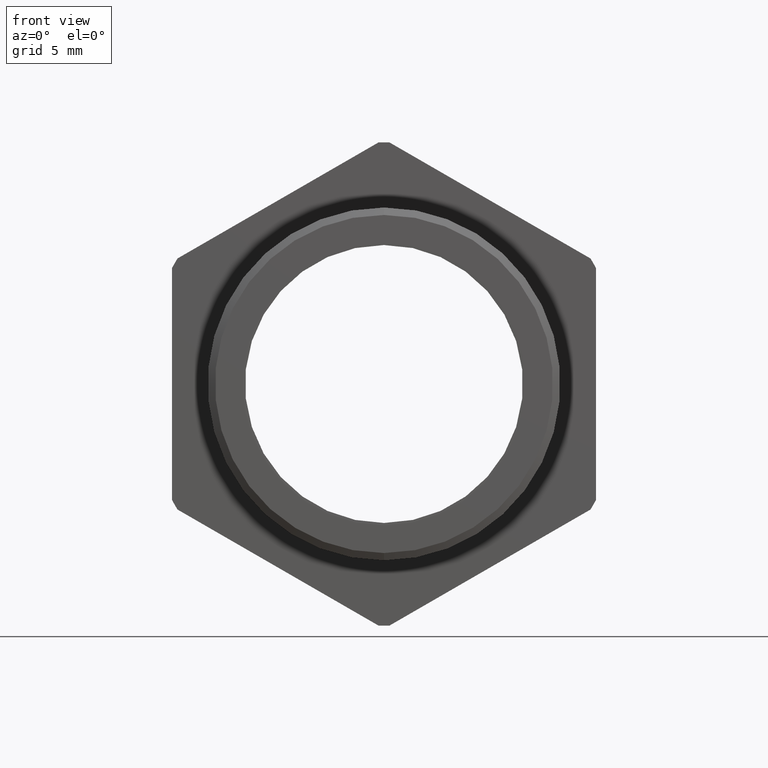
[diagram: clean part render]
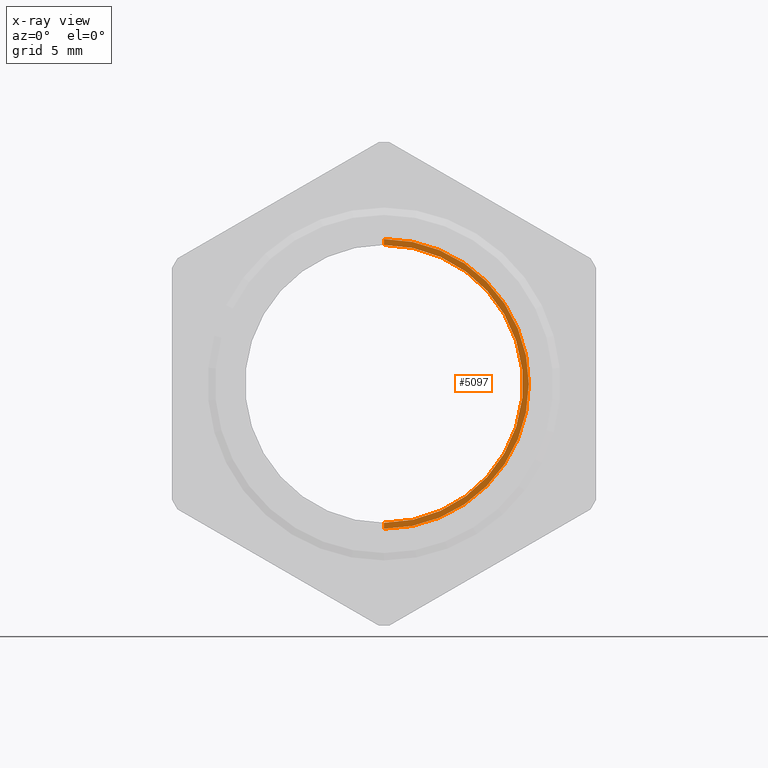
[diagram: x-ray — body ghosted, one internal face saturated and labeled with its STEP entity id]
A machine part, front view, then the same camera in x-ray: the body is ghosted and one INTERNAL B-rep face — a face not visible from any outside direction — is saturated and labeled: STEP entity #5097.
In plain terms, the highlighted conical surface has half-angle 88.312 deg.
Its self-contained STEP definition (entity closure, byte-faithful):
#1143 = DIRECTION ( 'NONE',  ( 0.0000000000000000000, 0.0000000000000000000, -1.000000000000000000 ) ) ;
#1144 = DIRECTION ( 'NONE',  ( -0.0000000000000000000, 1.000000000000000000, -0.0000000000000000000 ) ) ;
#1145 = CARTESIAN_POINT ( 'NONE',  ( 0.0000000000000000000, 0.3742219653570459900, 0.0000000000000000000 ) ) ;
#1146 = AXIS2_PLACEMENT_3D ( 'NONE', #1145, #1144, #1143 ) ;
#1151 = CIRCLE ( 'NONE', #1146, 0.2589880461203001900 ) ;
#2176 = DIRECTION ( 'NONE',  ( 0.0000000000000000000, -0.02945739864719126200, -0.9995660366703845700 ) ) ;
#2178 = VECTOR ( 'NONE', #2176, 39.37007874015747400 ) ;
#2179 = CARTESIAN_POINT ( 'NONE',  ( 0.0000000000000000000, 0.3747992980933291300, -0.2393976470508425700 ) ) ;
#2180 = LINE ( 'NONE', #2179, #2178 ) ;
#2183 = DIRECTION ( 'NONE',  ( 1.224115347344792500E-016, -0.02945739864719126200, 0.9995660366703845700 ) ) ;
#2184 = VECTOR ( 'NONE', #2183, 39.37007874015747400 ) ;
#2185 = CARTESIAN_POINT ( 'NONE',  ( 2.931775621842221100E-017, 0.3747992980933291300, 0.2393976470508425700 ) ) ;
#2186 = LINE ( 'NONE', #2185, #2184 ) ;
#2188 = CARTESIAN_POINT ( 'NONE',  ( 3.171688816986526800E-017, 0.3742219653570459900, 0.2589880461203001900 ) ) ;
#2189 = CARTESIAN_POINT ( 'NONE',  ( 0.0000000000000000000, 0.3742219653570459900, -0.2589880461203001900 ) ) ;
#2214 = CARTESIAN_POINT ( 'NONE',  ( 3.305482958008340700E-017, 0.3738999999999996800, 0.2699131668257122600 ) ) ;
#2220 = CARTESIAN_POINT ( 'NONE',  ( 0.0000000000000000000, 0.3738999999999996800, -0.2699131668257122600 ) ) ;
#5076 = EDGE_LOOP ( 'NONE', ( #5094, #5095, #5090, #5088 ) ) ;
#5088 = ORIENTED_EDGE ( 'NONE', *, *, #5092, .F. ) ;
#5090 = ORIENTED_EDGE ( 'NONE', *, *, #6096, .T. ) ;
#5092 = EDGE_CURVE ( 'NONE', #6112, #6109, #8416, .T. ) ;
#5094 = ORIENTED_EDGE ( 'NONE', *, *, #6093, .F. ) ;
#5095 = ORIENTED_EDGE ( 'NONE', *, *, #5585, .T. ) ;
#5097 = ADVANCED_FACE ( 'NONE', ( #8407 ), #8406, .F. ) ;
#5585 = EDGE_CURVE ( 'NONE', #6091, #6090, #1151, .T. ) ;
#6090 = VERTEX_POINT ( 'NONE', #2189 ) ;
#6091 = VERTEX_POINT ( 'NONE', #2188 ) ;
#6093 = EDGE_CURVE ( 'NONE', #6091, #6112, #2186, .T. ) ;
#6096 = EDGE_CURVE ( 'NONE', #6090, #6109, #2180, .T. ) ;
#6109 = VERTEX_POINT ( 'NONE', #2220 ) ;
#6112 = VERTEX_POINT ( 'NONE', #2214 ) ;
#8400 = DIRECTION ( 'NONE',  ( 0.0000000000000000000, 0.0000000000000000000, -1.000000000000000000 ) ) ;
#8401 = DIRECTION ( 'NONE',  ( 0.0000000000000000000, -1.000000000000000000, 0.0000000000000000000 ) ) ;
#8402 = CARTESIAN_POINT ( 'NONE',  ( 0.0000000000000000000, 0.3747992980933291300, 0.0000000000000000000 ) ) ;
#8403 = AXIS2_PLACEMENT_3D ( 'NONE', #8402, #8401, #8400 ) ;
#8406 = CONICAL_SURFACE ( 'NONE', #8403, 0.2393976470508425700, 1.541334666264296200 ) ;
#8407 = FACE_OUTER_BOUND ( 'NONE', #5076, .T. ) ;
#8408 = DIRECTION ( 'NONE',  ( 0.0000000000000000000, 0.0000000000000000000, 1.000000000000000000 ) ) ;
#8409 = DIRECTION ( 'NONE',  ( -0.0000000000000000000, 1.000000000000000000, -0.0000000000000000000 ) ) ;
#8410 = CARTESIAN_POINT ( 'NONE',  ( 0.0000000000000000000, 0.3738999999999996800, 0.0000000000000000000 ) ) ;
#8411 = AXIS2_PLACEMENT_3D ( 'NONE', #8410, #8409, #8408 ) ;
#8416 = CIRCLE ( 'NONE', #8411, 0.2699131668257122000 ) ;